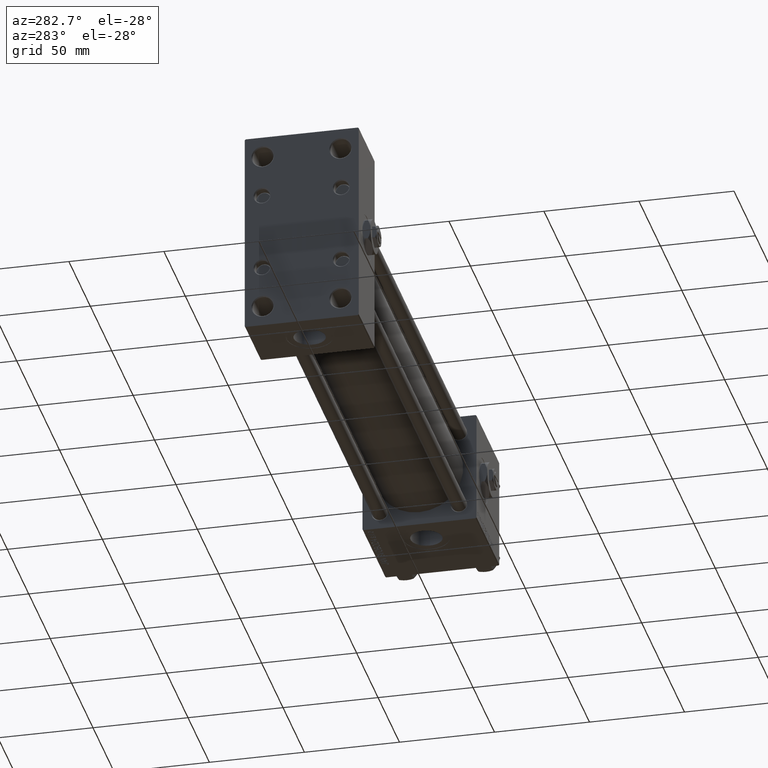
[diagram: clean part render]
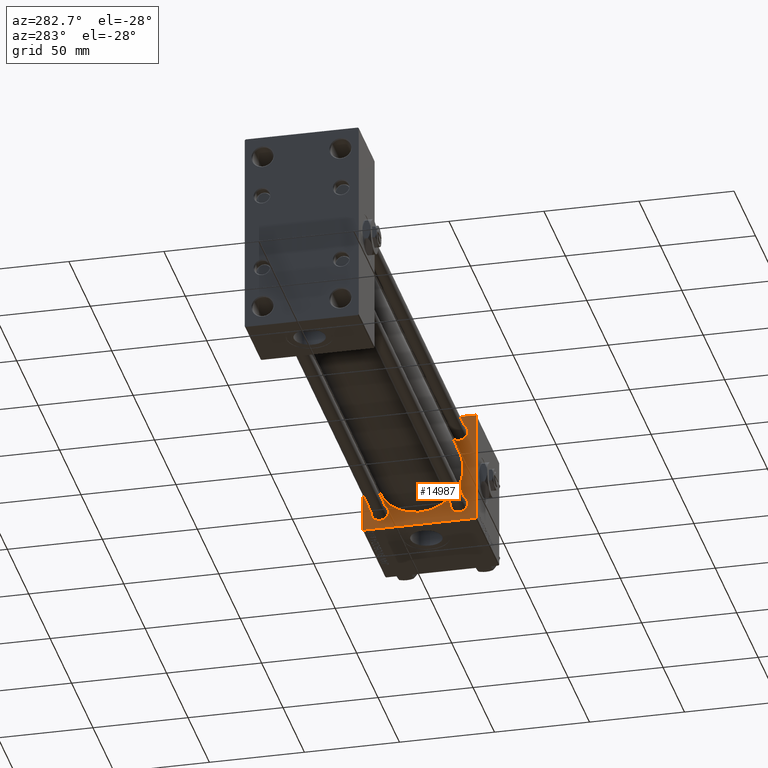
[diagram: same view with one face highlighted and labeled with its STEP entity id]
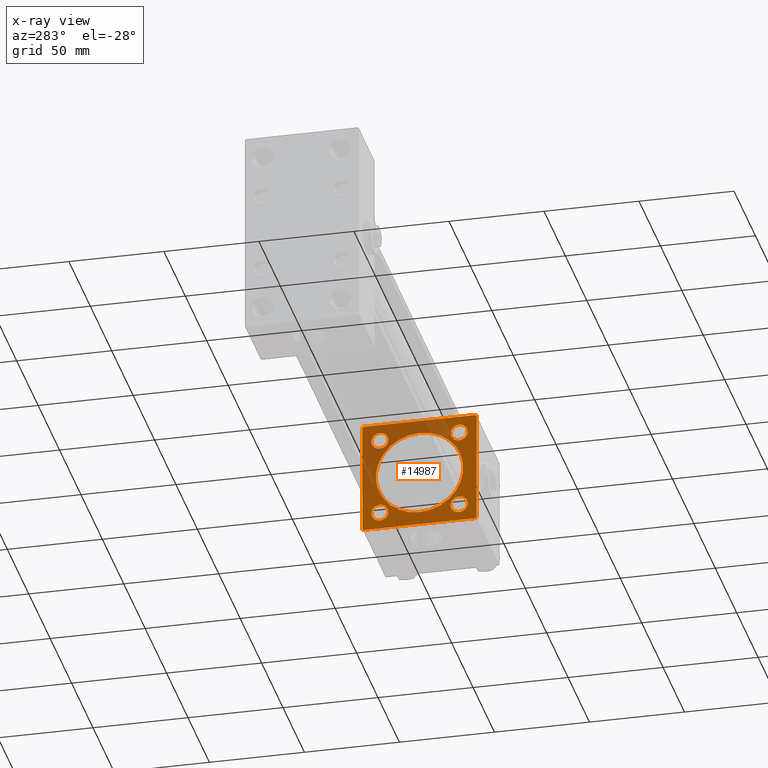
[diagram: x-ray of the same camera — body ghosted, the highlighted face saturated]
A machine part, auxiliary view. The second image highlights one B-rep face of the part: STEP entity #14987.
The next image is the same camera in x-ray: the body ghosted, the highlighted face saturated — about 34% of this face is hidden behind the body in this view.
In plain terms, the highlighted planar face has unit normal (-1, 0, 0).
Its self-contained STEP definition (entity closure, byte-faithful):
#204 = EDGE_LOOP ( 'NONE', ( #36031, #21744 ) ) ;
#230 = CARTESIAN_POINT ( 'NONE',  ( 274.9999999999999432, 20.84999999999999787, 16.35000000000002274 ) ) ;
#370 = VERTEX_POINT ( 'NONE', #35804 ) ;
#560 = ORIENTED_EDGE ( 'NONE', *, *, #21937, .F. ) ;
#696 = EDGE_LOOP ( 'NONE', ( #38321, #14881 ) ) ;
#821 = CARTESIAN_POINT ( 'NONE',  ( 274.9999999999999432, 29.74999999999997158, -29.74999999999997158 ) ) ;
#978 = DIRECTION ( 'NONE',  ( 1.000000000000000000, 0.000000000000000000, 0.000000000000000000 ) ) ;
#1024 = AXIS2_PLACEMENT_3D ( 'NONE', #19120, #35158, #31224 ) ;
#1146 = VECTOR ( 'NONE', #41557, 1000.000000000000000 ) ;
#1287 = LINE ( 'NONE', #9431, #1146 ) ;
#1870 = CIRCLE ( 'NONE', #1024, 4.499999999999976019 ) ;
#2095 = CARTESIAN_POINT ( 'NONE',  ( 274.9999999999999432, 20.84999999999999787, -16.35000000000002274 ) ) ;
#2498 = VERTEX_POINT ( 'NONE', #16878 ) ;
#2614 = CARTESIAN_POINT ( 'NONE',  ( 274.9999999999999432, 30.00000000000000000, -29.49999999999992184 ) ) ;
#4139 = VECTOR ( 'NONE', #9579, 1000.000000000000000 ) ;
#4164 = EDGE_LOOP ( 'NONE', ( #50054, #25600 ) ) ;
#4366 = AXIS2_PLACEMENT_3D ( 'NONE', #25323, #16113, #16642 ) ;
#5510 = EDGE_CURVE ( 'NONE', #36435, #2498, #1287, .T. ) ;
#5900 = DIRECTION ( 'NONE',  ( 0.000000000000000000, -1.000000000000000000, -1.156482317317871478E-16 ) ) ;
#6082 = CARTESIAN_POINT ( 'NONE',  ( 274.9999999999999432, -2.602085213965210642E-15, 0.000000000000000000 ) ) ;
#7252 = CARTESIAN_POINT ( 'NONE',  ( 274.9999999999999432, 20.84999999999999787, -20.85000000000000142 ) ) ;
#7291 = VERTEX_POINT ( 'NONE', #16666 ) ;
#7738 = VERTEX_POINT ( 'NONE', #34386 ) ;
#8071 = EDGE_LOOP ( 'NONE', ( #16846, #44760 ) ) ;
#8542 = ORIENTED_EDGE ( 'NONE', *, *, #5510, .T. ) ;
#8965 = LINE ( 'NONE', #821, #49310 ) ;
#9431 = CARTESIAN_POINT ( 'NONE',  ( 274.9999999999999432, 30.00000000000000000, -29.99999999999999289 ) ) ;
#9579 = DIRECTION ( 'NONE',  ( 0.000000000000000000, 0.000000000000000000, -1.000000000000000000 ) ) ;
#10016 = FACE_BOUND ( 'NONE', #8071, .T. ) ;
#10245 = CARTESIAN_POINT ( 'NONE',  ( 274.9999999999999432, -20.84999999999999076, -25.34999999999998010 ) ) ;
#10915 = CARTESIAN_POINT ( 'NONE',  ( 274.9999999999999432, -20.84999999999999076, 25.34999999999998010 ) ) ;
#11287 = CARTESIAN_POINT ( 'NONE',  ( 274.9999999999999432, 20.84999999999999787, 20.85000000000000142 ) ) ;
#11474 = EDGE_CURVE ( 'NONE', #24136, #26674, #18182, .T. ) ;
#12118 = EDGE_CURVE ( 'NONE', #26674, #24136, #47631, .T. ) ;
#12668 = EDGE_CURVE ( 'NONE', #31653, #36435, #8965, .T. ) ;
#12703 = DIRECTION ( 'NONE',  ( 1.000000000000000000, -0.000000000000000000, 0.000000000000000000 ) ) ;
#13611 = VECTOR ( 'NONE', #24883, 1000.000000000000000 ) ;
#13757 = CARTESIAN_POINT ( 'NONE',  ( 274.9999999999999432, -29.49999999999994316, 29.99999999999999289 ) ) ;
#14229 = FACE_BOUND ( 'NONE', #696, .T. ) ;
#14881 = ORIENTED_EDGE ( 'NONE', *, *, #35937, .T. ) ;
#14987 = ADVANCED_FACE ( 'NONE', ( #14229, #30820, #18979, #46086, #10016, #46597 ), #26616, .T. ) ;
#15299 = CARTESIAN_POINT ( 'NONE',  ( 274.9999999999999432, -30.00000000000000000, 29.49999999999993605 ) ) ;
#15651 = DIRECTION ( 'NONE',  ( -0.000000000000000000, 0.7071067811865474617, 0.7071067811865474617 ) ) ;
#15752 = CARTESIAN_POINT ( 'NONE',  ( 274.9999999999999432, -20.84999999999999076, 20.85000000000000497 ) ) ;
#16012 = DIRECTION ( 'NONE',  ( 1.000000000000000000, -0.000000000000000000, 0.000000000000000000 ) ) ;
#16113 = DIRECTION ( 'NONE',  ( 1.000000000000000000, -0.000000000000000000, 0.000000000000000000 ) ) ;
#16642 = DIRECTION ( 'NONE',  ( 0.000000000000000000, 0.000000000000000000, 1.000000000000000000 ) ) ;
#16666 = CARTESIAN_POINT ( 'NONE',  ( 274.9999999999999432, -20.84999999999999076, 16.35000000000002629 ) ) ;
#16846 = ORIENTED_EDGE ( 'NONE', *, *, #23100, .T. ) ;
#16878 = CARTESIAN_POINT ( 'NONE',  ( 274.9999999999999432, -29.50000000000002487, -30.00000000000000000 ) ) ;
#16932 = DIRECTION ( 'NONE',  ( 0.000000000000000000, 0.000000000000000000, 1.000000000000000000 ) ) ;
#18182 = CIRCLE ( 'NONE', #46748, 4.499999999999976019 ) ;
#18253 = VERTEX_POINT ( 'NONE', #15299 ) ;
#18465 = CIRCLE ( 'NONE', #48702, 23.00000000000000000 ) ;
#18591 = CARTESIAN_POINT ( 'NONE',  ( 274.9999999999999432, -29.75000000000082778, -29.74999999999917577 ) ) ;
#18690 = VECTOR ( 'NONE', #27281, 1000.000000000000000 ) ;
#18979 = FACE_BOUND ( 'NONE', #40200, .T. ) ;
#19120 = CARTESIAN_POINT ( 'NONE',  ( 274.9999999999999432, -20.84999999999999076, 20.85000000000000497 ) ) ;
#19245 = ORIENTED_EDGE ( 'NONE', *, *, #32303, .T. ) ;
#19604 = LINE ( 'NONE', #51708, #33092 ) ;
#19851 = CARTESIAN_POINT ( 'NONE',  ( 274.9999999999999432, -20.84999999999999076, -20.85000000000000497 ) ) ;
#20670 = CARTESIAN_POINT ( 'NONE',  ( 274.9999999999999432, 30.00000000000000000, 30.00000000000000000 ) ) ;
#20867 = AXIS2_PLACEMENT_3D ( 'NONE', #42640, #23192, #22924 ) ;
#21271 = DIRECTION ( 'NONE',  ( 0.000000000000000000, 0.7071067811865279218, -0.7071067811865671127 ) ) ;
#21744 = ORIENTED_EDGE ( 'NONE', *, *, #38500, .T. ) ;
#21937 = EDGE_CURVE ( 'NONE', #18253, #39282, #37481, .T. ) ;
#22564 = DIRECTION ( 'NONE',  ( 0.000000000000000000, 0.000000000000000000, 1.000000000000000000 ) ) ;
#22924 = DIRECTION ( 'NONE',  ( -0.000000000000000000, 0.000000000000000000, 1.000000000000000000 ) ) ;
#23100 = EDGE_CURVE ( 'NONE', #370, #44529, #18465, .T. ) ;
#23192 = DIRECTION ( 'NONE',  ( -1.000000000000000000, 0.000000000000000000, -0.000000000000000000 ) ) ;
#23495 = DIRECTION ( 'NONE',  ( 0.000000000000000000, 0.000000000000000000, 1.000000000000000000 ) ) ;
#23732 = CIRCLE ( 'NONE', #43893, 23.00000000000000000 ) ;
#24136 = VERTEX_POINT ( 'NONE', #10245 ) ;
#24277 = DIRECTION ( 'NONE',  ( -0.000000000000000000, -0.7071067811865474617, -0.7071067811865474617 ) ) ;
#24883 = DIRECTION ( 'NONE',  ( 0.000000000000000000, 0.000000000000000000, -1.000000000000000000 ) ) ;
#25323 = CARTESIAN_POINT ( 'NONE',  ( 274.9999999999999432, 20.84999999999999787, -20.85000000000000142 ) ) ;
#25338 = EDGE_CURVE ( 'NONE', #7738, #26686, #35335, .T. ) ;
#25591 = AXIS2_PLACEMENT_3D ( 'NONE', #11287, #16012, #43909 ) ;
#25600 = ORIENTED_EDGE ( 'NONE', *, *, #11474, .T. ) ;
#26616 = PLANE ( 'NONE',  #20867 ) ;
#26674 = VERTEX_POINT ( 'NONE', #40499 ) ;
#26686 = VERTEX_POINT ( 'NONE', #230 ) ;
#27281 = DIRECTION ( 'NONE',  ( 0.000000000000000000, -0.7071067811865279218, 0.7071067811865671127 ) ) ;
#27447 = CARTESIAN_POINT ( 'NONE',  ( 274.9999999999999432, 20.84999999999999787, 20.85000000000000142 ) ) ;
#27874 = DIRECTION ( 'NONE',  ( 0.000000000000000000, 0.000000000000000000, 1.000000000000000000 ) ) ;
#28581 = EDGE_CURVE ( 'NONE', #34364, #31653, #44346, .T. ) ;
#28937 = VECTOR ( 'NONE', #5900, 1000.000000000000000 ) ;
#29207 = EDGE_CURVE ( 'NONE', #44529, #370, #23732, .T. ) ;
#29323 = EDGE_LOOP ( 'NONE', ( #8542, #42766, #560, #46553, #45046, #31268, #40021, #33436 ) ) ;
#29379 = EDGE_CURVE ( 'NONE', #51398, #7291, #1870, .T. ) ;
#29392 = EDGE_CURVE ( 'NONE', #2498, #39282, #47263, .T. ) ;
#30155 = LINE ( 'NONE', #48387, #28937 ) ;
#30532 = AXIS2_PLACEMENT_3D ( 'NONE', #15752, #32331, #27874 ) ;
#30820 = FACE_BOUND ( 'NONE', #204, .T. ) ;
#30992 = DIRECTION ( 'NONE',  ( 0.000000000000000000, 0.000000000000000000, 1.000000000000000000 ) ) ;
#31224 = DIRECTION ( 'NONE',  ( 0.000000000000000000, 0.000000000000000000, 1.000000000000000000 ) ) ;
#31251 = DIRECTION ( 'NONE',  ( 1.000000000000000000, -0.000000000000000000, 0.000000000000000000 ) ) ;
#31268 = ORIENTED_EDGE ( 'NONE', *, *, #46689, .T. ) ;
#31412 = CIRCLE ( 'NONE', #30532, 4.499999999999976019 ) ;
#31653 = VERTEX_POINT ( 'NONE', #2614 ) ;
#32303 = EDGE_CURVE ( 'NONE', #51345, #48832, #46368, .T. ) ;
#32331 = DIRECTION ( 'NONE',  ( 1.000000000000000000, -0.000000000000000000, 0.000000000000000000 ) ) ;
#32451 = AXIS2_PLACEMENT_3D ( 'NONE', #7252, #39384, #22564 ) ;
#33092 = VECTOR ( 'NONE', #15651, 1000.000000000000114 ) ;
#33100 = DIRECTION ( 'NONE',  ( 0.000000000000000000, 0.000000000000000000, -1.000000000000000000 ) ) ;
#33436 = ORIENTED_EDGE ( 'NONE', *, *, #12668, .T. ) ;
#34009 = DIRECTION ( 'NONE',  ( 0.000000000000000000, 0.000000000000000000, -1.000000000000000000 ) ) ;
#34364 = VERTEX_POINT ( 'NONE', #46330 ) ;
#34386 = CARTESIAN_POINT ( 'NONE',  ( 274.9999999999999432, 20.84999999999999787, 25.34999999999997655 ) ) ;
#34496 = AXIS2_PLACEMENT_3D ( 'NONE', #27447, #43477, #23495 ) ;
#35108 = CARTESIAN_POINT ( 'NONE',  ( 274.9999999999999432, 29.49999999999994316, -29.99999999999999289 ) ) ;
#35158 = DIRECTION ( 'NONE',  ( 1.000000000000000000, -0.000000000000000000, 0.000000000000000000 ) ) ;
#35163 = CARTESIAN_POINT ( 'NONE',  ( 274.9999999999999432, 2.146024240737016609E-16, -23.00000000000000000 ) ) ;
#35335 = CIRCLE ( 'NONE', #34496, 4.499999999999976019 ) ;
#35804 = CARTESIAN_POINT ( 'NONE',  ( 274.9999999999999432, -2.602085213965210642E-15, 23.00000000000000000 ) ) ;
#35937 = EDGE_CURVE ( 'NONE', #7291, #51398, #31412, .T. ) ;
#36031 = ORIENTED_EDGE ( 'NONE', *, *, #25338, .T. ) ;
#36435 = VERTEX_POINT ( 'NONE', #35108 ) ;
#36743 = CARTESIAN_POINT ( 'NONE',  ( 274.9999999999999432, 20.84999999999999787, -25.34999999999997655 ) ) ;
#37030 = CARTESIAN_POINT ( 'NONE',  ( 274.9999999999999432, -2.602085213965210642E-15, 0.000000000000000000 ) ) ;
#37039 = LINE ( 'NONE', #49149, #38356 ) ;
#37348 = EDGE_CURVE ( 'NONE', #45214, #50521, #30155, .T. ) ;
#37481 = LINE ( 'NONE', #38520, #4139 ) ;
#38321 = ORIENTED_EDGE ( 'NONE', *, *, #29379, .T. ) ;
#38356 = VECTOR ( 'NONE', #21271, 1000.000000000000000 ) ;
#38500 = EDGE_CURVE ( 'NONE', #26686, #7738, #48257, .T. ) ;
#38520 = CARTESIAN_POINT ( 'NONE',  ( 274.9999999999999432, -30.00000000000000000, 29.99999999999999289 ) ) ;
#38592 = CARTESIAN_POINT ( 'NONE',  ( 274.9999999999999432, 29.50000000000002487, 30.00000000000000000 ) ) ;
#39282 = VERTEX_POINT ( 'NONE', #41004 ) ;
#39384 = DIRECTION ( 'NONE',  ( 1.000000000000000000, -0.000000000000000000, 0.000000000000000000 ) ) ;
#40021 = ORIENTED_EDGE ( 'NONE', *, *, #28581, .T. ) ;
#40068 = AXIS2_PLACEMENT_3D ( 'NONE', #43862, #31251, #30992 ) ;
#40200 = EDGE_LOOP ( 'NONE', ( #48148, #19245 ) ) ;
#40499 = CARTESIAN_POINT ( 'NONE',  ( 274.9999999999999432, -20.84999999999999076, -16.35000000000002629 ) ) ;
#40629 = EDGE_CURVE ( 'NONE', #18253, #50521, #19604, .T. ) ;
#41004 = CARTESIAN_POINT ( 'NONE',  ( 274.9999999999999432, -30.00000000000000000, -29.49999999999998579 ) ) ;
#41557 = DIRECTION ( 'NONE',  ( 0.000000000000000000, -1.000000000000000000, -1.156482317317871478E-16 ) ) ;
#42408 = DIRECTION ( 'NONE',  ( 1.000000000000000000, 0.000000000000000000, 0.000000000000000000 ) ) ;
#42640 = CARTESIAN_POINT ( 'NONE',  ( 274.9999999999999432, 0.000000000000000000, 0.000000000000000000 ) ) ;
#42766 = ORIENTED_EDGE ( 'NONE', *, *, #29392, .T. ) ;
#43477 = DIRECTION ( 'NONE',  ( 1.000000000000000000, -0.000000000000000000, 0.000000000000000000 ) ) ;
#43862 = CARTESIAN_POINT ( 'NONE',  ( 274.9999999999999432, -20.84999999999999076, -20.85000000000000497 ) ) ;
#43893 = AXIS2_PLACEMENT_3D ( 'NONE', #37030, #978, #33100 ) ;
#43909 = DIRECTION ( 'NONE',  ( 0.000000000000000000, 0.000000000000000000, 1.000000000000000000 ) ) ;
#44346 = LINE ( 'NONE', #20670, #13611 ) ;
#44529 = VERTEX_POINT ( 'NONE', #35163 ) ;
#44760 = ORIENTED_EDGE ( 'NONE', *, *, #29207, .T. ) ;
#45046 = ORIENTED_EDGE ( 'NONE', *, *, #37348, .F. ) ;
#45214 = VERTEX_POINT ( 'NONE', #38592 ) ;
#45283 = EDGE_CURVE ( 'NONE', #48832, #51345, #46709, .T. ) ;
#46086 = FACE_BOUND ( 'NONE', #4164, .T. ) ;
#46330 = CARTESIAN_POINT ( 'NONE',  ( 274.9999999999999432, 30.00000000000000000, 29.50000000000000000 ) ) ;
#46368 = CIRCLE ( 'NONE', #4366, 4.499999999999976019 ) ;
#46553 = ORIENTED_EDGE ( 'NONE', *, *, #40629, .T. ) ;
#46597 = FACE_OUTER_BOUND ( 'NONE', #29323, .T. ) ;
#46689 = EDGE_CURVE ( 'NONE', #45214, #34364, #37039, .T. ) ;
#46709 = CIRCLE ( 'NONE', #32451, 4.499999999999976019 ) ;
#46748 = AXIS2_PLACEMENT_3D ( 'NONE', #19851, #12703, #16932 ) ;
#47263 = LINE ( 'NONE', #18591, #18690 ) ;
#47631 = CIRCLE ( 'NONE', #40068, 4.499999999999976019 ) ;
#48148 = ORIENTED_EDGE ( 'NONE', *, *, #45283, .T. ) ;
#48257 = CIRCLE ( 'NONE', #25591, 4.499999999999976019 ) ;
#48387 = CARTESIAN_POINT ( 'NONE',  ( 274.9999999999999432, 30.00000000000000000, 30.00000000000000000 ) ) ;
#48702 = AXIS2_PLACEMENT_3D ( 'NONE', #6082, #42408, #34009 ) ;
#48832 = VERTEX_POINT ( 'NONE', #2095 ) ;
#49149 = CARTESIAN_POINT ( 'NONE',  ( 274.9999999999999432, 29.75000000000082778, 29.74999999999917577 ) ) ;
#49310 = VECTOR ( 'NONE', #24277, 1000.000000000000114 ) ;
#50054 = ORIENTED_EDGE ( 'NONE', *, *, #12118, .T. ) ;
#50521 = VERTEX_POINT ( 'NONE', #13757 ) ;
#51345 = VERTEX_POINT ( 'NONE', #36743 ) ;
#51398 = VERTEX_POINT ( 'NONE', #10915 ) ;
#51708 = CARTESIAN_POINT ( 'NONE',  ( 274.9999999999999432, -29.74999999999997158, 29.74999999999997158 ) ) ;